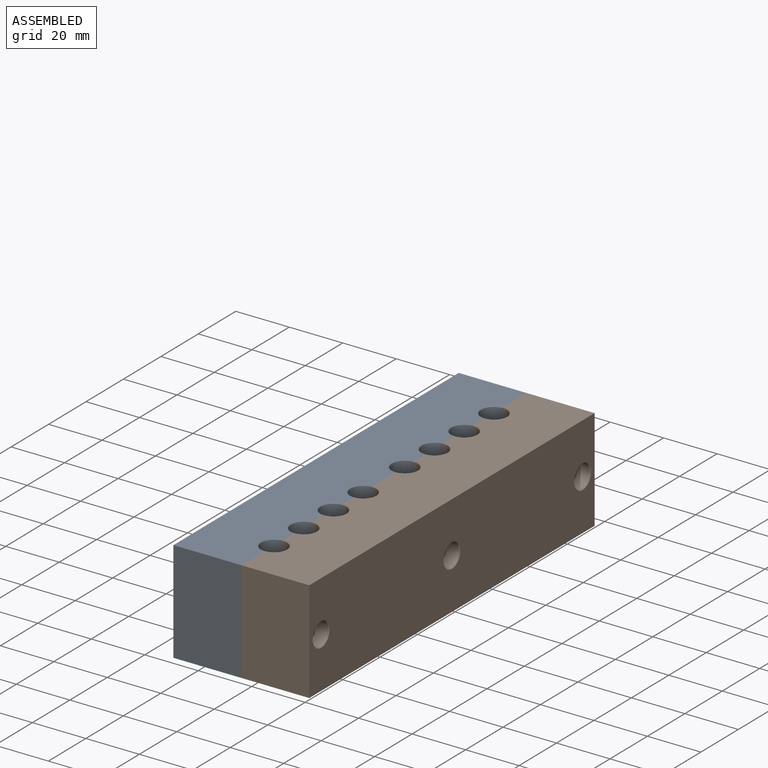
[diagram: assembled view]
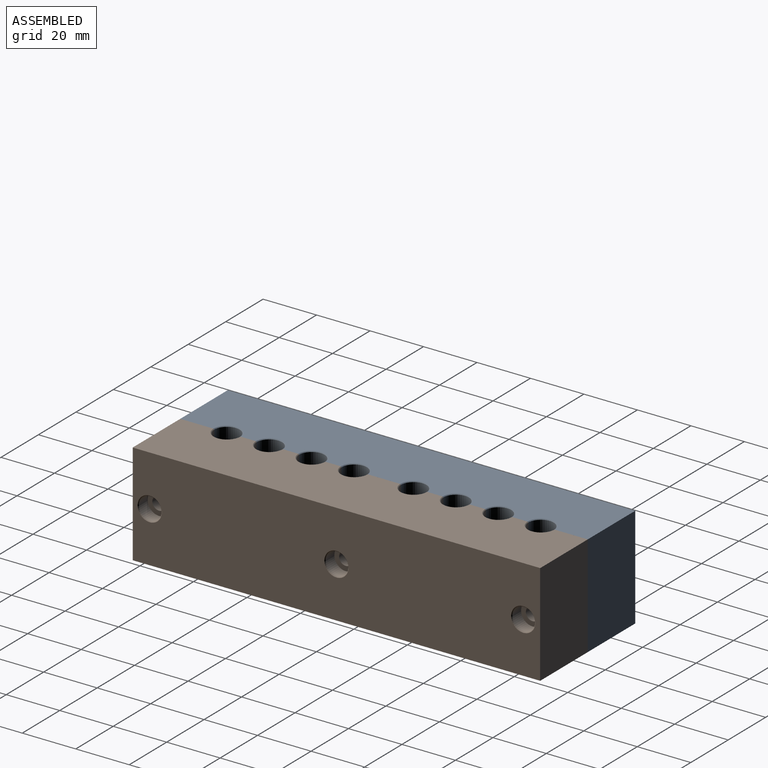
[diagram: assembled view, second angle]
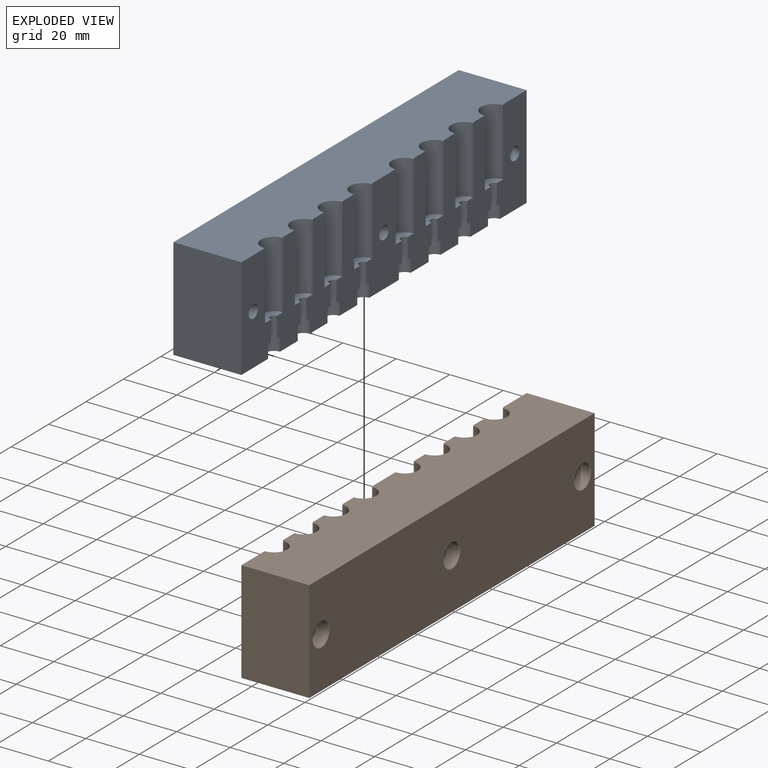
[diagram: exploded view]
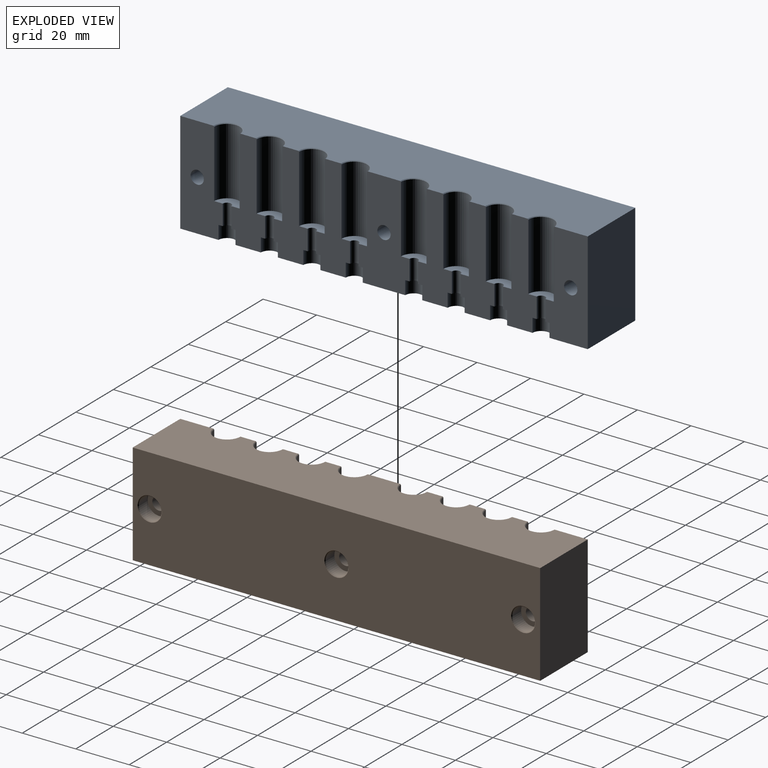
[diagram: exploded view, second angle]
ASSEMBLY  parts=2 mates=2
PART A: 74 faces, bbox 25.4x152.4x38.1 mm
  f0: plane 152.4x25.4mm, normal (0,0,-1), area 3744.3mm2, adj f9,f10,f11,f12,f13,f14,f15,f16
  f1: cylinder r=1.59mm len=7.62mm, axis (0,0,1), area 38mm2, adj f16,f20,f29,f73
  f2: cylinder r=1.59mm len=7.62mm, axis (0,0,1), area 38mm2, adj f15,f16,f31,f71
  f3: cylinder r=1.59mm len=7.62mm, axis (0,0,1), area 38mm2, adj f14,f15,f33,f69
  f4: cylinder r=1.59mm len=7.62mm, axis (0,0,1), area 38mm2, adj f13,f14,f25,f67
  f5: cylinder r=1.59mm len=7.62mm, axis (0,0,1), area 38mm2, adj f12,f13,f27,f65
  f6: cylinder r=1.59mm len=7.62mm, axis (0,0,1), area 38mm2, adj f11,f12,f35,f63
  f7: cylinder r=1.59mm len=7.62mm, axis (0,0,1), area 38mm2, adj f10,f11,f37,f61
  f8: cylinder r=1.59mm len=7.62mm, axis (0,0,1), area 38mm2, adj f9,f10,f39,f59
  f9: plane 38.1x15.88mm, normal (1,0,0), area 496.8mm2, adj f0,f8,f19,f22,f23,f39,f40,f44
  f10: plane 38.1x12.7mm, normal (1,0,0), area 306.4mm2, adj f0,f7,f8,f22,f37,f38,f39,f40
  f11: plane 38.1x12.7mm, normal (1,0,0), area 306.4mm2, adj f0,f6,f7,f22,f35,f36,f37,f38
  f12: plane 38.1x12.7mm, normal (1,0,0), area 306.4mm2, adj f0,f5,f6,f22,f27,f28,f35,f36
  f13: plane 38.1x19.05mm, normal (1,0,0), area 529.1mm2, adj f0,f4,f5,f17,f22,f25,f26,f27
  f14: plane 38.1x12.7mm, normal (1,0,0), area 306.4mm2, adj f0,f3,f4,f22,f25,f26,f33,f34
  f15: plane 38.1x12.7mm, normal (1,0,0), area 306.4mm2, adj f0,f2,f3,f22,f31,f32,f33,f34
  f16: plane 38.1x12.7mm, normal (1,0,0), area 306.4mm2, adj f0,f1,f2,f22,f29,f30,f31,f32
  f17: cylinder r=2.48mm len=20.45mm, axis (-1,0,0), area 318.2mm2, adj f13,f54
  f18: cylinder r=2.48mm len=20.45mm, axis (-1,0,0), area 318.2mm2, adj f20,f52
  f19: cylinder r=2.48mm len=20.45mm, axis (-1,0,0), area 318.2mm2, adj f9,f50
  f20: plane 38.1x15.88mm, normal (1,0,0), area 496.8mm2, adj f0,f1,f18,f22,f24,f29,f30,f41
  f21: plane 152.4x38.1mm, normal (-1,0,0), area 5614.9mm2, adj f0,f22,f23,f24,f55,f56,f57
  f22: plane 152.4x25.4mm, normal (0,0,1), area 3554.7mm2, adj f9,f10,f11,f12,f13,f14,f15,f16
  f23: plane 38.1x25.4mm, normal (0,-1,0), area 967.7mm2, adj f0,f9,f21,f22
  f24: plane 38.1x25.4mm, normal (0,1,0), area 967.7mm2, adj f0,f20,f21,f22
  f25: plane 9.53x4.76mm, normal (0,0,1), area 31.7mm2, adj f4,f13,f14,f26
  f26: cylinder r=4.76mm len=25.15mm, axis (0,0,1), area 376.2mm2, adj f13,f14,f25,f48
  f27: plane 9.53x4.76mm, normal (0,0,1), area 31.7mm2, adj f5,f12,f13,f28
  f28: cylinder r=4.76mm len=25.15mm, axis (0,0,1), area 376.2mm2, adj f12,f13,f27,f47
  f29: plane 9.53x4.76mm, normal (0,0,1), area 31.7mm2, adj f1,f16,f20,f30
  f30: cylinder r=4.76mm len=25.15mm, axis (0,0,1), area 376.2mm2, adj f16,f20,f29,f41
  f31: plane 9.53x4.76mm, normal (0,0,1), area 31.7mm2, adj f2,f15,f16,f32
  f32: cylinder r=4.76mm len=25.15mm, axis (0,0,1), area 376.2mm2, adj f15,f16,f31,f42
  f33: plane 9.53x4.76mm, normal (0,0,1), area 31.7mm2, adj f3,f14,f15,f34
  f34: cylinder r=4.76mm len=25.15mm, axis (0,0,1), area 376.2mm2, adj f14,f15,f33,f43
  f35: plane 9.53x4.76mm, normal (0,0,1), area 31.7mm2, adj f6,f11,f12,f36
  f36: cylinder r=4.76mm len=25.15mm, axis (0,0,1), area 376.2mm2, adj f11,f12,f35,f46
  f37: plane 9.53x4.76mm, normal (0,0,1), area 31.7mm2, adj f7,f10,f11,f38
  f38: cylinder r=4.76mm len=25.15mm, axis (0,0,1), area 376.2mm2, adj f10,f11,f37,f45
  f39: plane 9.53x4.76mm, normal (0,0,1), area 31.7mm2, adj f8,f9,f10,f40
  f40: cylinder r=4.76mm len=25.15mm, axis (0,0,1), area 376.2mm2, adj f9,f10,f39,f44
  f41: cone r=4.76mm half-angle=45deg, axis (0,0,1), area 5.5mm2, adj f16,f20,f22,f30
  f42: cone r=4.76mm half-angle=45deg, axis (0,0,1), area 5.5mm2, adj f15,f16,f22,f32
  f43: cone r=4.76mm half-angle=45deg, axis (0,0,1), area 5.5mm2, adj f14,f15,f22,f34
  f44: cone r=5.02mm half-angle=45deg, axis (0,0,1), area 5.5mm2, adj f9,f10,f22,f40
  f45: cone r=5.02mm half-angle=45deg, axis (0,0,1), area 5.5mm2, adj f10,f11,f22,f38
  f46: cone r=5.02mm half-angle=45deg, axis (0,0,1), area 5.5mm2, adj f11,f12,f22,f36
  f47: cone r=5.02mm half-angle=45deg, axis (0,0,1), area 5.5mm2, adj f12,f13,f22,f28
  f48: cone r=4.76mm half-angle=45deg, axis (0,0,1), area 5.5mm2, adj f13,f14,f22,f26
  f49: cylinder r=4.25mm len=8.51mm, axis (-1,0,0), area 125.6mm2, adj f50,f56
  f50: plane 8.51x8.51mm, normal (-1,0,0), area 37.6mm2, adj f19,f49
  f51: cylinder r=4.25mm len=8.51mm, axis (-1,0,0), area 125.6mm2, adj f52,f55
  f52: plane 8.51x8.51mm, normal (-1,0,0), area 37.6mm2, adj f18,f51
  f53: cylinder r=4.25mm len=8.51mm, axis (-1,0,0), area 125.6mm2, adj f54,f57
  f54: plane 8.51x8.51mm, normal (-1,0,0), area 37.6mm2, adj f17,f53
  f55: cone r=4.25mm half-angle=45deg, axis (-1,0,0), area 9.9mm2, adj f21,f51
  f56: cone r=4.25mm half-angle=45deg, axis (-1,0,0), area 9.9mm2, adj f21,f49
  f57: cone r=4.25mm half-angle=45deg, axis (-1,0,0), area 9.9mm2, adj f21,f53
  f58: cylinder r=3.17mm len=6.35mm, axis (0,0,-1), area 50.7mm2, adj f0,f9,f10,f59
  f59: plane 6.35x3.18mm, normal (0,0,-1), area 11.9mm2, adj f8,f9,f10,f58
  f60: cylinder r=3.17mm len=6.35mm, axis (0,0,-1), area 50.7mm2, adj f0,f10,f11,f61
  f61: plane 6.35x3.18mm, normal (0,0,-1), area 11.9mm2, adj f7,f10,f11,f60
  f62: cylinder r=3.17mm len=6.35mm, axis (0,0,-1), area 50.7mm2, adj f0,f11,f12,f63
  f63: plane 6.35x3.18mm, normal (0,0,-1), area 11.9mm2, adj f6,f11,f12,f62
  f64: cylinder r=3.17mm len=6.35mm, axis (0,0,-1), area 50.7mm2, adj f0,f12,f13,f65
  f65: plane 6.35x3.18mm, normal (0,0,-1), area 11.9mm2, adj f5,f12,f13,f64
  f66: cylinder r=3.17mm len=6.35mm, axis (0,0,-1), area 50.7mm2, adj f0,f13,f14,f67
  f67: plane 6.35x3.18mm, normal (0,0,-1), area 11.9mm2, adj f4,f13,f14,f66
  f68: cylinder r=3.17mm len=6.35mm, axis (0,0,-1), area 50.7mm2, adj f0,f14,f15,f69
  f69: plane 6.35x3.18mm, normal (0,0,-1), area 11.9mm2, adj f3,f14,f15,f68
  f70: cylinder r=3.17mm len=6.35mm, axis (0,0,-1), area 50.7mm2, adj f0,f15,f16,f71
  f71: plane 6.35x3.18mm, normal (0,0,-1), area 11.9mm2, adj f2,f15,f16,f70
  f72: cylinder r=3.17mm len=6.35mm, axis (0,0,-1), area 50.7mm2, adj f0,f16,f20,f73
  f73: plane 6.35x3.18mm, normal (0,0,-1), area 11.9mm2, adj f1,f16,f20,f72
PART B: same geometry as A
PLACE A t=(-35.79,11.31,-29.15)mm fixed
PLACE B rot(axis=(0,0,-1),180deg) t=(-10.39,-141.09,-29.15)mm
MATE planar A.f0 <-> B.f0  axis (0,0,1) through (-23.09,-141.09,-48.2)mm
MATE planar A.f22 <-> B.f22  axis (0,0,1) through (-23.09,-141.09,-10.1)mm
